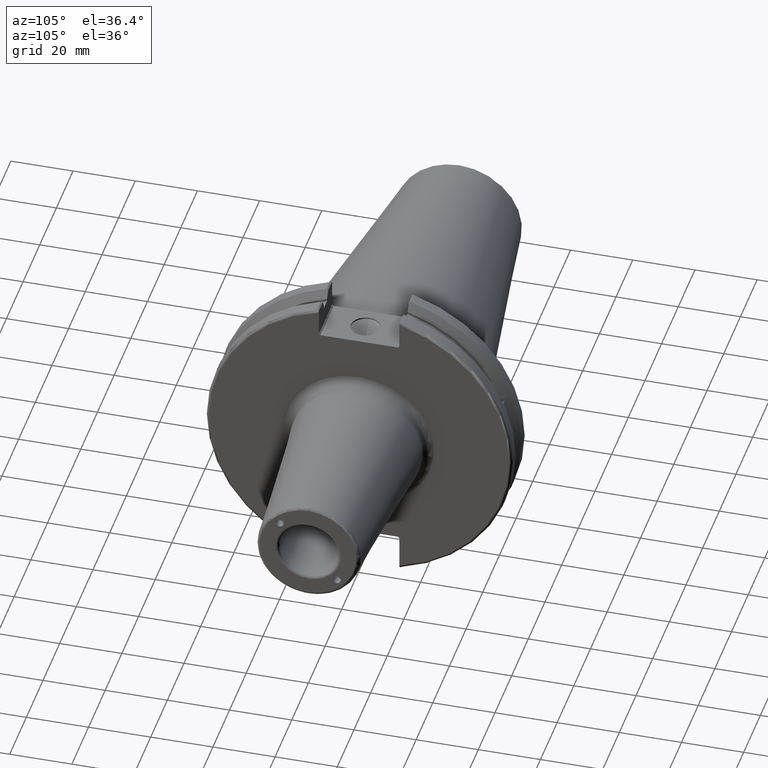
[diagram: clean part render]
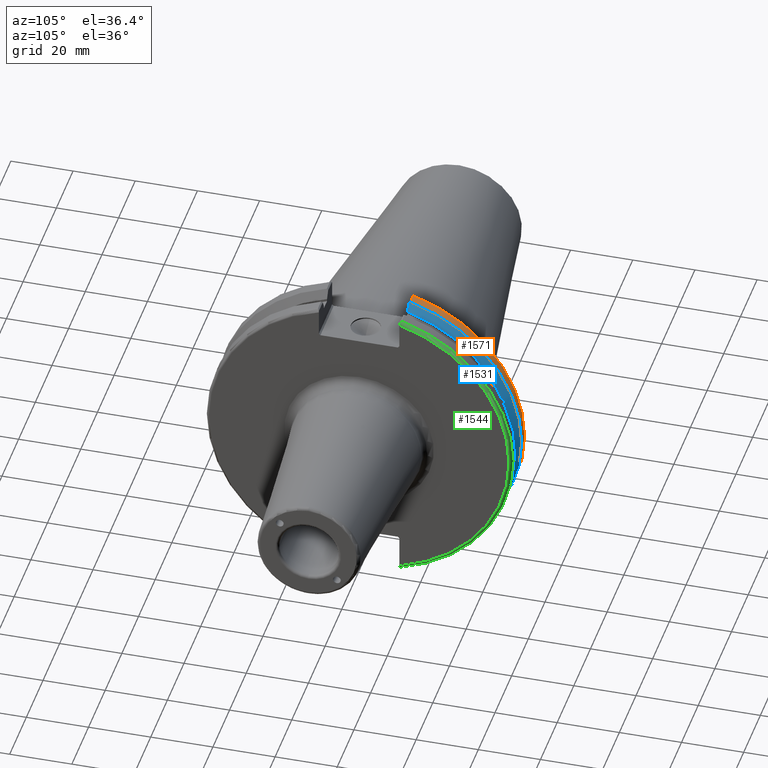
[diagram: same view with three faces highlighted in distinct colors, each labeled with its STEP entity id]
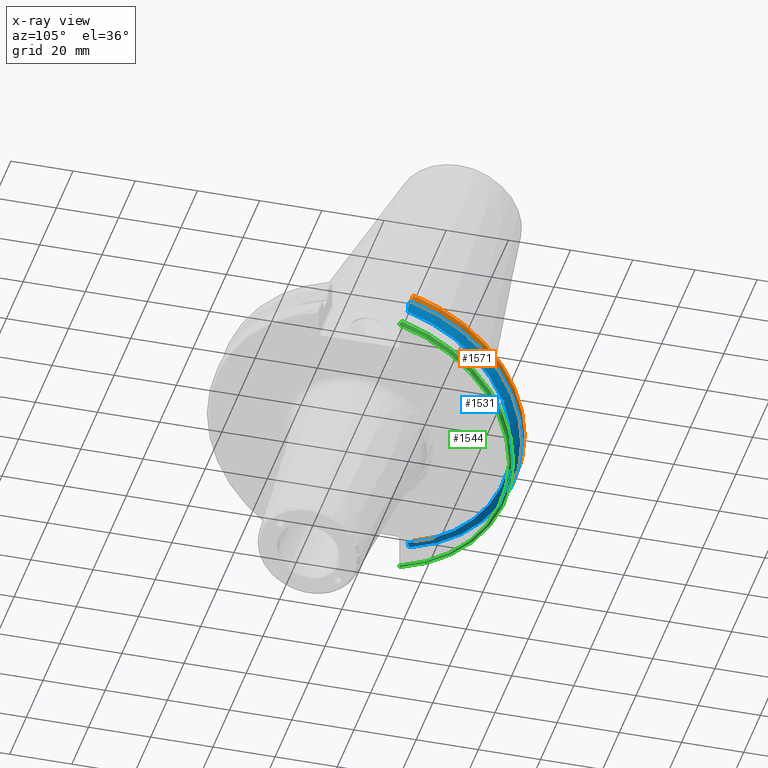
[diagram: x-ray of the same camera — body ghosted, the three highlighted faces saturated]
A machine part, auxiliary view with three faces highlighted in distinct colors.
The next image is the same camera in x-ray (body ghosted, the three faces saturated) — at least one of them is partly hidden behind the body in this view.
Their STEP definitions:

[orange] entity #1571 — the highlighted cylindrical surface (partial cylindrical patch) has radius 49.2125 mm, axis along (1, 0, 0).
#226=FACE_OUTER_BOUND('',#336,.T.);
#336=EDGE_LOOP('',(#1397,#1398,#1399,#1400));
#393=CIRCLE('',#1687,49.2125);
#414=CIRCLE('',#1732,49.2125);
#505=LINE('',#3079,#599);
#520=LINE('',#3132,#614);
#599=VECTOR('',#2105,10.);
#614=VECTOR('',#2164,10.);
#708=VERTEX_POINT('',#2804);
#709=VERTEX_POINT('',#2808);
#761=VERTEX_POINT('',#3053);
#762=VERTEX_POINT('',#3062);
#887=EDGE_CURVE('',#708,#709,#393,.T.);
#965=EDGE_CURVE('',#761,#762,#414,.T.);
#968=EDGE_CURVE('',#762,#708,#505,.T.);
#992=EDGE_CURVE('',#709,#761,#520,.T.);
#1397=ORIENTED_EDGE('',*,*,#965,.F.);
#1398=ORIENTED_EDGE('',*,*,#992,.F.);
#1399=ORIENTED_EDGE('',*,*,#887,.F.);
#1400=ORIENTED_EDGE('',*,*,#968,.F.);
#1492=CYLINDRICAL_SURFACE('',#1756,49.2125);
#1571=ADVANCED_FACE('',(#226),#1492,.T.);
#1687=AXIS2_PLACEMENT_3D('',#2809,#1977,#1978);
#1732=AXIS2_PLACEMENT_3D('',#3063,#2101,#2102);
#1756=AXIS2_PLACEMENT_3D('',#3133,#2165,#2166);
#1977=DIRECTION('center_axis',(1.,0.,0.));
#1978=DIRECTION('ref_axis',(0.,0.,-1.));
#2101=DIRECTION('center_axis',(-1.,0.,0.));
#2102=DIRECTION('ref_axis',(0.,1.,-6.12323399573677E-17));
#2105=DIRECTION('',(1.,0.,0.));
#2164=DIRECTION('',(-1.,0.,0.));
#2165=DIRECTION('center_axis',(1.,0.,0.));
#2166=DIRECTION('ref_axis',(0.,1.,0.));
#2804=CARTESIAN_POINT('',(7.60799096595127,13.4317035994433,-47.3440544806494));
#2808=CARTESIAN_POINT('',(7.60799096595127,13.4317035994433,47.3440544806494));
#2809=CARTESIAN_POINT('Origin',(7.60799096595127,0.,0.));
#3053=CARTESIAN_POINT('',(4.175,13.4317035994433,47.3440544806494));
#3062=CARTESIAN_POINT('',(4.175,13.4317035994433,-47.3440544806494));
#3063=CARTESIAN_POINT('Origin',(4.175,0.,0.));
#3079=CARTESIAN_POINT('',(5.39149548297563,13.4317035994433,-47.3440544806494));
#3132=CARTESIAN_POINT('',(5.39149548297563,13.4317035994433,47.3440544806494));
#3133=CARTESIAN_POINT('Origin',(5.39149548297563,0.,0.));

[blue] entity #1531 — the highlighted conical surface has half-angle 60 deg.
#19=(
BOUNDED_CURVE()
B_SPLINE_CURVE(2,(#2801,#2802,#2803),.UNSPECIFIED.,.F.,.F.)
B_SPLINE_CURVE_WITH_KNOTS((3,3),(0.,0.275823910674652),.UNSPECIFIED.)
CURVE()
GEOMETRIC_REPRESENTATION_ITEM()
RATIONAL_B_SPLINE_CURVE((1.,1.00038235573731,1.00012873636533))
REPRESENTATION_ITEM('')
);
#20=(
BOUNDED_CURVE()
B_SPLINE_CURVE(2,(#2805,#2806,#2807),.UNSPECIFIED.,.F.,.F.)
B_SPLINE_CURVE_WITH_KNOTS((3,3),(0.,0.0648240472898323),.UNSPECIFIED.)
CURVE()
GEOMETRIC_REPRESENTATION_ITEM()
RATIONAL_B_SPLINE_CURVE((1.,1.00011477674853,1.00019140645976))
REPRESENTATION_ITEM('')
);
#21=(
BOUNDED_CURVE()
B_SPLINE_CURVE(2,(#2811,#2812,#2813),.UNSPECIFIED.,.F.,.F.)
B_SPLINE_CURVE_WITH_KNOTS((3,3),(0.325260944932483,0.390084992222205),
 .UNSPECIFIED.)
CURVE()
GEOMETRIC_REPRESENTATION_ITEM()
RATIONAL_B_SPLINE_CURVE((1.00019140645955,1.00011477674841,1.))
REPRESENTATION_ITEM('')
);
#22=(
BOUNDED_CURVE()
B_SPLINE_CURVE(2,(#2815,#2816,#2817),.UNSPECIFIED.,.F.,.F.)
B_SPLINE_CURVE_WITH_KNOTS((3,3),(0.0558332664491378,0.331657177124507),
 .UNSPECIFIED.)
CURVE()
GEOMETRIC_REPRESENTATION_ITEM()
RATIONAL_B_SPLINE_CURVE((1.00012873637135,1.00038235575519,1.))
REPRESENTATION_ITEM('')
);
#50=B_SPLINE_CURVE_WITH_KNOTS('',3,(#2754,#2755,#2756,#2757,#2758,#2759,
#2760,#2761,#2762,#2763,#2764,#2765,#2766,#2767),.UNSPECIFIED.,.F.,.F.,
(4,2,2,2,2,2,4),(0.426712868358718,0.441644498666905,0.480313313223129,
0.518982127779353,0.557650942335577,0.596319756891801,0.611251387199986),
 .UNSPECIFIED.);
#73=CONICAL_SURFACE('',#1685,47.8172386482472,1.0471975511966);
#186=FACE_OUTER_BOUND('',#289,.T.);
#289=EDGE_LOOP('',(#1179,#1180,#1181,#1182,#1183,#1184,#1185,#1186));
#392=CIRCLE('',#1686,46.4219772964944);
#393=CIRCLE('',#1687,49.2125);
#394=CIRCLE('',#1688,46.4219772964944);
#701=VERTEX_POINT('',#2751);
#702=VERTEX_POINT('',#2753);
#706=VERTEX_POINT('',#2798);
#707=VERTEX_POINT('',#2800);
#708=VERTEX_POINT('',#2804);
#709=VERTEX_POINT('',#2808);
#710=VERTEX_POINT('',#2810);
#711=VERTEX_POINT('',#2814);
#879=EDGE_CURVE('',#702,#701,#50,.T.);
#884=EDGE_CURVE('',#706,#701,#392,.T.);
#885=EDGE_CURVE('',#706,#707,#19,.T.);
#886=EDGE_CURVE('',#708,#707,#20,.T.);
#887=EDGE_CURVE('',#708,#709,#393,.T.);
#888=EDGE_CURVE('',#710,#709,#21,.T.);
#889=EDGE_CURVE('',#710,#711,#22,.T.);
#890=EDGE_CURVE('',#702,#711,#394,.T.);
#1179=ORIENTED_EDGE('',*,*,#879,.T.);
#1180=ORIENTED_EDGE('',*,*,#884,.F.);
#1181=ORIENTED_EDGE('',*,*,#885,.T.);
#1182=ORIENTED_EDGE('',*,*,#886,.F.);
#1183=ORIENTED_EDGE('',*,*,#887,.T.);
#1184=ORIENTED_EDGE('',*,*,#888,.F.);
#1185=ORIENTED_EDGE('',*,*,#889,.T.);
#1186=ORIENTED_EDGE('',*,*,#890,.F.);
#1531=ADVANCED_FACE('',(#186),#73,.T.);
#1685=AXIS2_PLACEMENT_3D('',#2797,#1973,#1974);
#1686=AXIS2_PLACEMENT_3D('',#2799,#1975,#1976);
#1687=AXIS2_PLACEMENT_3D('',#2809,#1977,#1978);
#1688=AXIS2_PLACEMENT_3D('',#2818,#1979,#1980);
#1973=DIRECTION('center_axis',(-1.,0.,0.));
#1974=DIRECTION('ref_axis',(0.,1.,0.));
#1975=DIRECTION('center_axis',(1.,0.,0.));
#1976=DIRECTION('ref_axis',(0.,0.,-1.));
#1977=DIRECTION('center_axis',(1.,0.,0.));
#1978=DIRECTION('ref_axis',(0.,0.,-1.));
#1979=DIRECTION('center_axis',(1.,0.,0.));
#1980=DIRECTION('ref_axis',(0.,0.,-1.));
#2751=CARTESIAN_POINT('',(9.2191,43.9096390749305,15.0646464421033));
#2753=CARTESIAN_POINT('',(9.2191,43.3201030900029,16.684383248648));
#2754=CARTESIAN_POINT('Ctrl Pts',(9.21910000000001,43.3201030900029,16.6843832486479));
#2755=CARTESIAN_POINT('Ctrl Pts',(9.20211843903392,43.3613106941341,16.6592273018006));
#2756=CARTESIAN_POINT('Ctrl Pts',(9.18608675403323,43.4012416983557,16.6326763251437));
#2757=CARTESIAN_POINT('Ctrl Pts',(9.13238673845037,43.539103734322,16.5325130832406));
#2758=CARTESIAN_POINT('Ctrl Pts',(9.09621610663555,43.6406982153491,16.441180795372));
#2759=CARTESIAN_POINT('Ctrl Pts',(9.04690868251975,43.8110833825827,16.2291323464527));
#2760=CARTESIAN_POINT('Ctrl Pts',(9.0341,43.8794096049168,16.10796730316));
#2761=CARTESIAN_POINT('Ctrl Pts',(9.0341,43.9675796948952,15.8657219718732));
#2762=CARTESIAN_POINT('Ctrl Pts',(9.04690868251975,43.9931221605126,15.7289849146254));
#2763=CARTESIAN_POINT('Ctrl Pts',(9.09621610663555,43.9989016655819,15.4570249042868));
#2764=CARTESIAN_POINT('Ctrl Pts',(9.13238673845037,43.9797830409458,15.3217566390708));
#2765=CARTESIAN_POINT('Ctrl Pts',(9.18608675403322,43.9385582852181,15.1564111356409));
#2766=CARTESIAN_POINT('Ctrl Pts',(9.20211843903391,43.9250360001461,15.1104047527575));
#2767=CARTESIAN_POINT('Ctrl Pts',(9.2191,43.9096390749305,15.0646464421033));
#2797=CARTESIAN_POINT('Origin',(8.41354548297563,0.,0.));
#2798=CARTESIAN_POINT('',(9.2191,12.95,-44.5791147973604));
#2799=CARTESIAN_POINT('Origin',(9.2191,0.,0.));
#2800=CARTESIAN_POINT('',(7.88638960562424,12.95,-46.9780755322918));
#2801=CARTESIAN_POINT('Ctrl Pts',(9.2191,12.95,-44.5791147973604));
#2802=CARTESIAN_POINT('Ctrl Pts',(8.57020449055827,12.95,-45.7494966802153));
#2803=CARTESIAN_POINT('Ctrl Pts',(7.88638960562424,12.95,-46.9780755322918));
#2804=CARTESIAN_POINT('',(7.60799096595127,13.4317035994433,-47.3440544806494));
#2805=CARTESIAN_POINT('Ctrl Pts',(7.60799096595127,13.4317035994433,-47.3440544806494));
#2806=CARTESIAN_POINT('Ctrl Pts',(7.74826896663818,13.1896660169966,-47.1601640966265));
#2807=CARTESIAN_POINT('Ctrl Pts',(7.88638960562424,12.95,-46.9780755322918));
#2808=CARTESIAN_POINT('',(7.60799096595127,13.4317035994433,47.3440544806494));
#2809=CARTESIAN_POINT('Origin',(7.60799096595127,0.,0.));
#2810=CARTESIAN_POINT('',(7.88638960562424,12.95,46.9780755322918));
#2811=CARTESIAN_POINT('Ctrl Pts',(7.88638960562424,12.95,46.9780755322917));
#2812=CARTESIAN_POINT('Ctrl Pts',(7.74826896663821,13.1896660169966,47.1601640966264));
#2813=CARTESIAN_POINT('Ctrl Pts',(7.60799096595127,13.4317035994433,47.3440544806494));
#2814=CARTESIAN_POINT('',(9.2191,12.95,44.5791147973604));
#2815=CARTESIAN_POINT('Ctrl Pts',(7.88638960562424,12.95,46.9780755322918));
#2816=CARTESIAN_POINT('Ctrl Pts',(8.57020449055492,12.95,45.7494966802213));
#2817=CARTESIAN_POINT('Ctrl Pts',(9.2191,12.95,44.5791147973604));
#2818=CARTESIAN_POINT('Origin',(9.2191,0.,0.));

[green] entity #1544 — the highlighted toroidal blend (fillet) surface has major radius 48.2125 mm and minor (blend) radius 1 mm.
#53=B_SPLINE_CURVE_WITH_KNOTS('',3,(#2894,#2895,#2896,#2897,#2898,#2899),
 .UNSPECIFIED.,.F.,.F.,(4,2,4),(0.0976892167532868,0.112000071948293,0.150881870548587),
 .UNSPECIFIED.);
#54=B_SPLINE_CURVE_WITH_KNOTS('',3,(#2901,#2902,#2903,#2904,#2905,#2906),
 .UNSPECIFIED.,.F.,.F.,(4,2,4),(0.452859340315922,0.491741138916218,0.506051994111223),
 .UNSPECIFIED.);
#55=B_SPLINE_CURVE_WITH_KNOTS('',3,(#2908,#2909,#2910,#2911,#2912,#2913,
#2914,#2915),.UNSPECIFIED.,.F.,.F.,(4,2,2,4),(-0.104197480645881,-0.0778720357014994,
-0.0364336453281809,0.),.UNSPECIFIED.);
#56=B_SPLINE_CURVE_WITH_KNOTS('',3,(#2918,#2919,#2920,#2921,#2922,#2923,
#2924,#2925),.UNSPECIFIED.,.F.,.F.,(4,2,2,4),(0.,0.0364336453281816,0.0778720357014993,
0.104197480645882),.UNSPECIFIED.);
#108=TOROIDAL_SURFACE('',#1717,48.2125,1.);
#199=FACE_OUTER_BOUND('',#308,.T.);
#308=EDGE_LOOP('',(#1249,#1250,#1251,#1252,#1253,#1254));
#361=CIRCLE('',#1626,48.2125);
#410=CIRCLE('',#1718,49.2125);
#632=VERTEX_POINT('',#2250);
#633=VERTEX_POINT('',#2251);
#738=VERTEX_POINT('',#2893);
#739=VERTEX_POINT('',#2900);
#740=VERTEX_POINT('',#2907);
#741=VERTEX_POINT('',#2916);
#790=EDGE_CURVE('',#632,#633,#361,.T.);
#926=EDGE_CURVE('',#738,#632,#53,.T.);
#927=EDGE_CURVE('',#633,#739,#54,.T.);
#928=EDGE_CURVE('',#739,#740,#55,.T.);
#929=EDGE_CURVE('',#740,#741,#410,.T.);
#930=EDGE_CURVE('',#741,#738,#56,.T.);
#1249=ORIENTED_EDGE('',*,*,#926,.T.);
#1250=ORIENTED_EDGE('',*,*,#790,.T.);
#1251=ORIENTED_EDGE('',*,*,#927,.T.);
#1252=ORIENTED_EDGE('',*,*,#928,.T.);
#1253=ORIENTED_EDGE('',*,*,#929,.T.);
#1254=ORIENTED_EDGE('',*,*,#930,.T.);
#1544=ADVANCED_FACE('',(#199),#108,.T.);
#1626=AXIS2_PLACEMENT_3D('',#2252,#1819,#1820);
#1717=AXIS2_PLACEMENT_3D('',#2892,#2056,#2057);
#1718=AXIS2_PLACEMENT_3D('',#2917,#2058,#2059);
#1819=DIRECTION('center_axis',(-1.,0.,0.));
#1820=DIRECTION('ref_axis',(0.,1.,-6.12323399573677E-17));
#2056=DIRECTION('center_axis',(1.,0.,0.));
#2057=DIRECTION('ref_axis',(0.,0.,-1.));
#2058=DIRECTION('center_axis',(1.,0.,0.));
#2059=DIRECTION('ref_axis',(0.,1.,-6.12323399573677E-17));
#2250=CARTESIAN_POINT('',(19.05,12.95,46.4407434937254));
#2251=CARTESIAN_POINT('',(19.05,12.95,-46.4407434937254));
#2252=CARTESIAN_POINT('Origin',(19.05,0.,0.));
#2892=CARTESIAN_POINT('Origin',(18.05,0.,0.));
#2893=CARTESIAN_POINT('',(18.9055020570566,12.95,46.9780755322918));
#2894=CARTESIAN_POINT('Ctrl Pts',(18.9055020570566,12.95,46.9780755322918));
#2895=CARTESIAN_POINT('Ctrl Pts',(18.9315844351616,12.95,46.9333752207329));
#2896=CARTESIAN_POINT('Ctrl Pts',(18.9538432708766,12.95,46.887363294568));
#2897=CARTESIAN_POINT('Ctrl Pts',(19.0204646992875,12.95,46.7230464903732));
#2898=CARTESIAN_POINT('Ctrl Pts',(19.05,12.95,46.5703494890597));
#2899=CARTESIAN_POINT('Ctrl Pts',(19.05,12.95,46.4407434937254));
#2900=CARTESIAN_POINT('',(18.9055020570566,12.95,-46.9780755322918));
#2901=CARTESIAN_POINT('Ctrl Pts',(19.05,12.95,-46.4407434937254));
#2902=CARTESIAN_POINT('Ctrl Pts',(19.05,12.95,-46.5703494890597));
#2903=CARTESIAN_POINT('Ctrl Pts',(19.0204646992875,12.95,-46.7230464903732));
#2904=CARTESIAN_POINT('Ctrl Pts',(18.9538432708766,12.95,-46.887363294568));
#2905=CARTESIAN_POINT('Ctrl Pts',(18.9315844351616,12.95,-46.9333752207329));
#2906=CARTESIAN_POINT('Ctrl Pts',(18.9055020570566,12.95,-46.9780755322918));
#2907=CARTESIAN_POINT('',(18.05,13.4317035994433,-47.3440544806494));
#2908=CARTESIAN_POINT('Ctrl Pts',(18.9055020570566,12.95,-46.9780755322918));
#2909=CARTESIAN_POINT('Ctrl Pts',(18.8641312352177,13.0184763978125,-47.0301011349397));
#2910=CARTESIAN_POINT('Ctrl Pts',(18.811782280389,13.0847856162862,-47.0804802022157));
#2911=CARTESIAN_POINT('Ctrl Pts',(18.6710431007969,13.22546375702,-47.1873617743322));
#2912=CARTESIAN_POINT('Ctrl Pts',(18.54495745946,13.3111366376071,-47.2524525703658));
#2913=CARTESIAN_POINT('Ctrl Pts',(18.3128758164404,13.4037095171132,-47.3227857070234));
#2914=CARTESIAN_POINT('Ctrl Pts',(18.1714454844273,13.4317035994433,-47.3440544806494));
#2915=CARTESIAN_POINT('Ctrl Pts',(18.05,13.4317035994433,-47.3440544806494));
#2916=CARTESIAN_POINT('',(18.05,13.4317035994433,47.3440544806494));
#2917=CARTESIAN_POINT('Origin',(18.05,0.,0.));
#2918=CARTESIAN_POINT('Ctrl Pts',(18.05,13.4317035994433,47.3440544806494));
#2919=CARTESIAN_POINT('Ctrl Pts',(18.1714454844273,13.4317035994433,47.3440544806494));
#2920=CARTESIAN_POINT('Ctrl Pts',(18.3128758164404,13.4037095171132,47.3227857070234));
#2921=CARTESIAN_POINT('Ctrl Pts',(18.54495745946,13.3111366376071,47.2524525703658));
#2922=CARTESIAN_POINT('Ctrl Pts',(18.6710431007969,13.2254637570201,47.1873617743322));
#2923=CARTESIAN_POINT('Ctrl Pts',(18.811782280389,13.0847856162862,47.0804802022157));
#2924=CARTESIAN_POINT('Ctrl Pts',(18.8641312352177,13.0184763978125,47.0301011349397));
#2925=CARTESIAN_POINT('Ctrl Pts',(18.9055020570566,12.95,46.9780755322918));